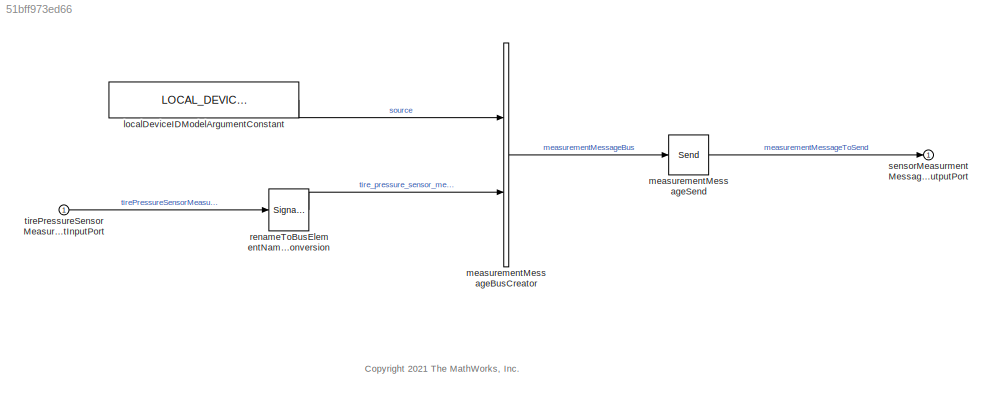
MODEL slx_51bff973ed66
KIND model
WORKSPACE source: MATLAB code (in-file) + mxarray member
WORKSPACE cmdLim = Simulink.Parameter
WORKSPACE code: cmdLim.Value = 15;
WORKSPACE code: cmdLim.Description = 'Limit for controlling the maximum surface command angle.';
WORKSPACE code: cmdLim.Min = 0;
WORKSPACE code: cmdLim.Max = 90;
WORKSPACE code: cmdLim.DocUnits = 'deg';
WORKSPACE dispGain = Simulink.Parameter
WORKSPACE code: dispGain.Value = 0.75;
WORKSPACE code: dispGain.Description = 'Gain applied to the displacement error.';
WORKSPACE code: dispGain.Min = 0;
WORKSPACE code: dispGain.Max = [];
WORKSPACE code: dispGain.DocUnits = 'deg/sec/deg';
WORKSPACE dispLim = Simulink.Parameter
WORKSPACE code: dispLim.Value = 30;
WORKSPACE code: dispLim.Description = 'Limit for controlling the maximum commanded angle.';
WORKSPACE code: dispLim.Min = 0;
WORKSPACE code: dispLim.Max = 180;
WORKSPACE code: dispLim.DocUnits = 'deg';
WORKSPACE intGain = Simulink.Parameter
WORKSPACE code: intGain.Value = 0.5;
WORKSPACE code: intGain.Description = 'Gain applied to the integral error.';
WORKSPACE code: intGain.Min = 0;
WORKSPACE code: intGain.Max = [];
WORKSPACE code: intGain.DocUnits = 'deg/sec/deg/sec';
WORKSPACE intLim = Simulink.Parameter
WORKSPACE code: intLim.Value = 5;
WORKSPACE code: intLim.Description = 'Limit for controlling the maximum commanded angle.';
WORKSPACE code: intLim.Min = 0;
WORKSPACE code: intLim.Max = 90;
WORKSPACE code: intLim.DocUnits = 'deg';
WORKSPACE rateGain = Simulink.Parameter
WORKSPACE code: rateGain.Value = 2;
WORKSPACE code: rateGain.Description = 'Gain applied to the rate error.';
WORKSPACE code: rateGain.Min = 0;
WORKSPACE code: rateGain.Max = [];
WORKSPACE code: rateGain.DocUnits = 'deg/deg/sec';
WORKSPACE rateLim = Simulink.Parameter
WORKSPACE code: rateLim.Value = 6;
WORKSPACE code: rateLim.Description = 'Limit for controlling the maximum commanded angle.';
WORKSPACE code: rateLim.Min = 0;
WORKSPACE code: rateLim.Max = 180;
WORKSPACE code: rateLim.DocUnits = 'deg/sec';
WORKSPACE hdgGain = Simulink.Parameter
WORKSPACE code: hdgGain.Value = 0.015;
WORKSPACE LOCAL_DEVICE_ID: Simulink.Parameter (value not decoded)
BLOCK [Constant] localDeviceIDModelArgumentConstant
  OutDataTypeStr = Bus: DeviceIDBusType
  Value = LOCAL_DEVICE_ID
BLOCK [BusCreator] measurementMessageBusCreator
  DisplayOption = bar
  InheritFromInputs = on
  Inputs = 2
  NonVirtualBus = on
  OutDataTypeStr = Bus: MeasurementMsgBusType
  Ports = [2, 1]
BLOCK [Send] measurementMessageSend
  InputPortMap = u1
  OutputPortMessageModes = m
  Ports = [1, 1]
BLOCK [SignalConversion] renameToBusElementNameSignalConversion
  OverrideOpt = off
BLOCK [Outport] sensorMeasurmentMessageBusElementOutputPort
  InputPortMessageModes = m
BLOCK [Inport] tirePressureSensorMeasurementInputPortBusElementInputPort
ANNOTATION (root): <copyright redacted>
LINE localDeviceIDModelArgumentConstant:1 -> measurementMessageBusCreator:1
LINE measurementMessageBusCreator:1 -> measurementMessageSend:1
LINE measurementMessageSend:1 -> sensorMeasurmentMessageBusElementOutputPort:1
LINE renameToBusElementNameSignalConversion:1 -> measurementMessageBusCreator:2
LINE tirePressureSensorMeasurementInputPortBusElementInputPort:1 -> renameToBusElementNameSignalConversion:1
